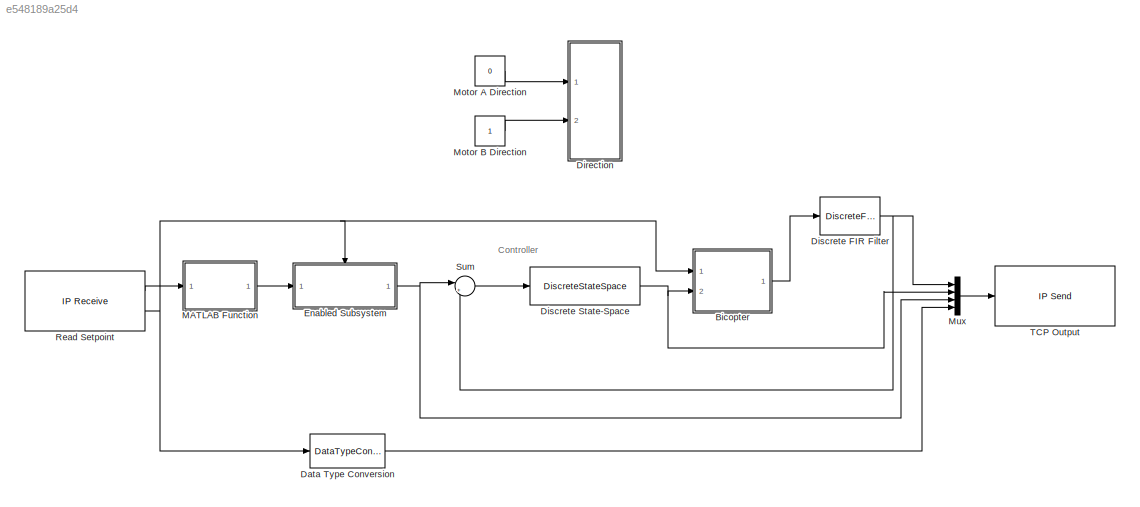
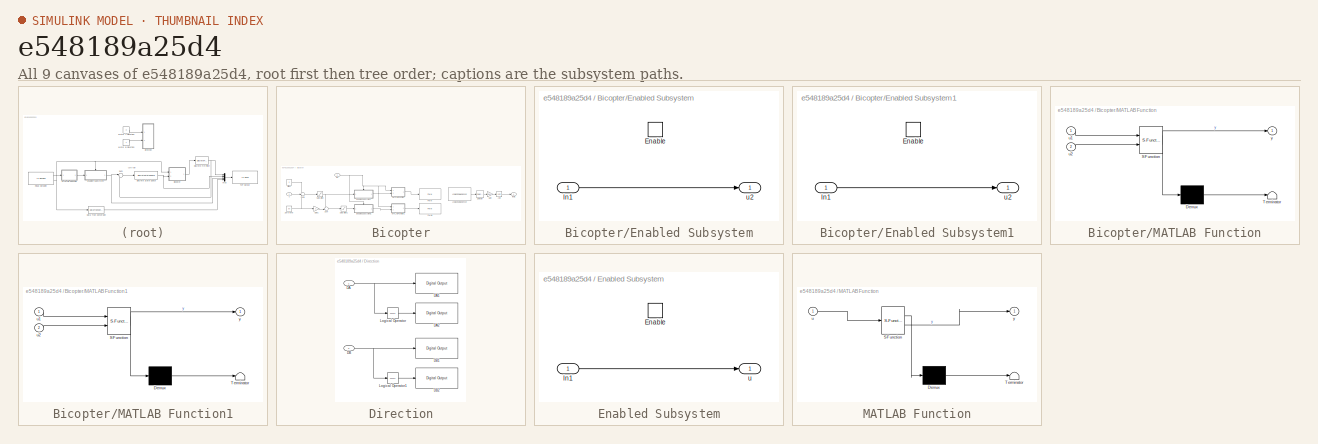
[diagram: thumbnail index - all 9 canvases of the model, root first then tree order]
MODEL slx_e548189a25d4
KIND model
CONFIG AbsTol = auto
CONFIG EnableMultiTasking = on
CONFIG FixedStep = auto
CONFIG MaxStep = auto
CONFIG MinStep = auto
CONFIG RelTol = 1e-3
CONFIG SampleTimeConstraint = Unconstrained
CONFIG SolverName = FixedStepAuto
CONFIG StartTime = 0.0
CONFIG StopTime = inf
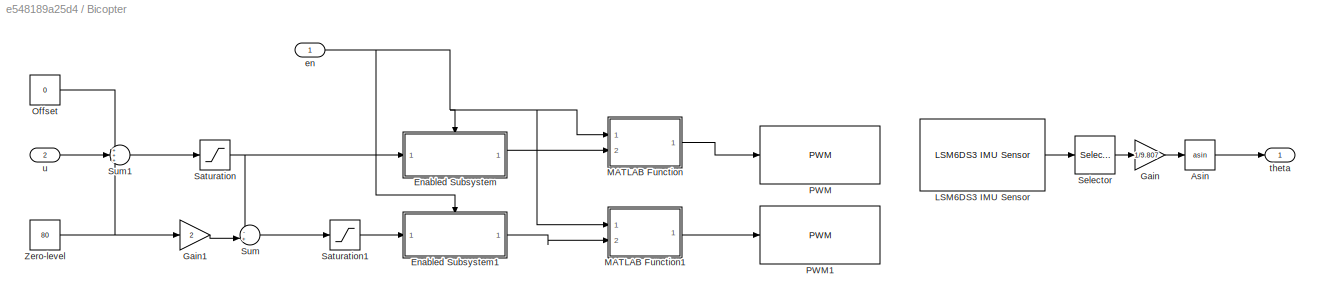
BLOCK [SubSystem] Bicopter
  Ports = [2, 1]
  RequestExecContextInheritance = off
BLOCK [Trigonometry] Bicopter/Asin
  Operator = asin
  Ports = [1, 1]
BLOCK [SubSystem] Bicopter/Enabled Subsystem
  Ports = [1, 1, 1]
  RequestExecContextInheritance = off
  TreatAsAtomicUnit = on
BLOCK [EnablePort] Bicopter/Enabled Subsystem/Enable
  Ports = []
  StatesWhenEnabling = reset
BLOCK [Inport] Bicopter/Enabled Subsystem/In1
BLOCK [Outport] Bicopter/Enabled Subsystem/u2
BLOCK [SubSystem] Bicopter/Enabled Subsystem1
  Ports = [1, 1, 1]
  RequestExecContextInheritance = off
  TreatAsAtomicUnit = on
BLOCK [EnablePort] Bicopter/Enabled Subsystem1/Enable
  Ports = []
  StatesWhenEnabling = reset
BLOCK [Inport] Bicopter/Enabled Subsystem1/In1
BLOCK [Outport] Bicopter/Enabled Subsystem1/u2
BLOCK [Gain] Bicopter/Gain
  Gain = 1/9.807
BLOCK [Gain] Bicopter/Gain1
  Gain = 2
BLOCK [Reference] Bicopter/LSM6DS3 IMU Sensor  REF=arduinosensorlib/LSM6DS3 IMU Sensor
  Ports = [0, 1]
  SourceBlock = arduinosensorlib/LSM6DS3 IMU Sensor
  SourceProductBaseCode = ARDUINO
  SourceType = Arduino LSM6DS3
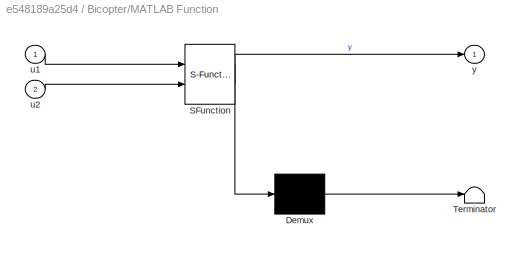
BLOCK [SubSystem] Bicopter/MATLAB Function
  ErrorFcn = Stateflow.Translate.translate
  PermitHierarchicalResolution = ExplicitOnly
  Ports = [2, 1]
  RequestExecContextInheritance = off
  SFBlockType = MATLAB Function
  TreatAsAtomicUnit = on
BLOCK [Demux] Bicopter/MATLAB Function/ Demux 
  Outputs = 1
  Ports = [1, 1]
BLOCK [S-Function] Bicopter/MATLAB Function/ SFunction 
  EnableBusSupport = on
  FunctionName = sf_sfun
  PortCounts = [2 2]
  Ports = [2, 2]
  SFcnIsStateOwnerBlock = off
  SFunctionDeploymentMode = off
  Tag = Stateflow S-Function 1
BLOCK [Terminator] Bicopter/MATLAB Function/ Terminator 
BLOCK [Inport] Bicopter/MATLAB Function/u1
BLOCK [Inport] Bicopter/MATLAB Function/u2
  Port = 2
BLOCK [Outport] Bicopter/MATLAB Function/y
BLOCK [SubSystem] Bicopter/MATLAB Function1
  ErrorFcn = Stateflow.Translate.translate
  PermitHierarchicalResolution = ExplicitOnly
  Ports = [2, 1]
  RequestExecContextInheritance = off
  SFBlockType = MATLAB Function
  TreatAsAtomicUnit = on
BLOCK [Demux] Bicopter/MATLAB Function1/ Demux 
  Outputs = 1
  Ports = [1, 1]
BLOCK [S-Function] Bicopter/MATLAB Function1/ SFunction 
  EnableBusSupport = on
  FunctionName = sf_sfun
  PortCounts = [2 2]
  Ports = [2, 2]
  SFcnIsStateOwnerBlock = off
  SFunctionDeploymentMode = off
  Tag = Stateflow S-Function 3
BLOCK [Terminator] Bicopter/MATLAB Function1/ Terminator 
BLOCK [Inport] Bicopter/MATLAB Function1/u1
BLOCK [Inport] Bicopter/MATLAB Function1/u2
  Port = 2
BLOCK [Outport] Bicopter/MATLAB Function1/y
BLOCK [Constant] Bicopter/Offset
  Value = 0
BLOCK [Reference] Bicopter/PWM  REF=arduinolib/PWM
  Ports = [1]
  SourceBlock = arduinolib/PWM
  SourceProductBaseCode = ARDUINO
  SourceType = Arduino PWM
BLOCK [Reference] Bicopter/PWM1  REF=arduinolib/PWM
  Ports = [1]
  SourceBlock = arduinolib/PWM
  SourceProductBaseCode = ARDUINO
  SourceType = Arduino PWM
BLOCK [Saturate] Bicopter/Saturation
  LowerLimit = 0
  OutDataTypeStr = uint8
  UpperLimit = 255
BLOCK [Saturate] Bicopter/Saturation1
  LowerLimit = 0
  OutDataTypeStr = uint8
  UpperLimit = 255
BLOCK [Selector] Bicopter/Selector
  IndexOptions = Index vector (dialog)
  Indices = [1]
  InputPortWidth = 3
  OutputSizes = 1
  Ports = [1, 1]
BLOCK [Sum] Bicopter/Sum
  Inputs = -+|
  OutDataTypeStr = uint8
  Ports = [2, 1]
BLOCK [Sum] Bicopter/Sum1
  Inputs = +++
  Ports = [3, 1]
BLOCK [Constant] Bicopter/Zero-level
  Value = 80
BLOCK [Inport] Bicopter/en
BLOCK [Outport] Bicopter/theta
BLOCK [Inport] Bicopter/u
  Port = 2
BLOCK [DataTypeConversion] Data Type Conversion
  OutDataTypeStr = double
  RndMeth = Floor
  SaturateOnIntegerOverflow = off
BLOCK [SubSystem] Direction
  Ports = [2]
  RequestExecContextInheritance = off
BLOCK [Inport] Direction/DA
BLOCK [Reference] Direction/DA1  REF=arduinolib/Digital Output
  Ports = [1]
  SourceBlock = arduinolib/Digital Output
  SourceProductBaseCode = ARDUINO
  SourceType = Arduino Digital Output
BLOCK [Reference] Direction/DA2  REF=arduinolib/Digital Output
  Ports = [1]
  SourceBlock = arduinolib/Digital Output
  SourceProductBaseCode = ARDUINO
  SourceType = Arduino Digital Output
BLOCK [Inport] Direction/DB
  Port = 2
BLOCK [Reference] Direction/DB1  REF=arduinolib/Digital Output
  Ports = [1]
  SourceBlock = arduinolib/Digital Output
  SourceProductBaseCode = ARDUINO
  SourceType = Arduino Digital Output
BLOCK [Reference] Direction/DB2  REF=arduinolib/Digital Output
  Ports = [1]
  SourceBlock = arduinolib/Digital Output
  SourceProductBaseCode = ARDUINO
  SourceType = Arduino Digital Output
BLOCK [Logic] Direction/Logical Operator
  AllPortsSameDT = off
  IconShape = distinctive
  Operator = NOT
  OutDataTypeStr = boolean
  Ports = [1, 1]
BLOCK [Logic] Direction/Logical Operator1
  AllPortsSameDT = off
  IconShape = distinctive
  Operator = NOT
  OutDataTypeStr = boolean
  Ports = [1, 1]
BLOCK [DiscreteFir] Discrete FIR Filter
  Coefficients = 0.1*ones(1,10)
  InputPortMap = u0
  OutputPortMap = o0
  Ports = [1, 1]
BLOCK [DiscreteStateSpace] Discrete State-Space
  A = Ci.A
  B = Ci.B
  C = Ci.C
  D = Ci.D
  InitialCondition = xinit
  SampleTime = -1
BLOCK [SubSystem] Enabled Subsystem
  Ports = [1, 1, 1]
  RequestExecContextInheritance = off
  TreatAsAtomicUnit = on
BLOCK [EnablePort] Enabled Subsystem/Enable
  Ports = []
BLOCK [Inport] Enabled Subsystem/In1
BLOCK [Outport] Enabled Subsystem/u
BLOCK [SubSystem] MATLAB Function
  ErrorFcn = Stateflow.Translate.translate
  PermitHierarchicalResolution = ExplicitOnly
  Ports = [1, 1]
  RequestExecContextInheritance = off
  SFBlockType = MATLAB Function
  TreatAsAtomicUnit = on
BLOCK [Demux] MATLAB Function/ Demux 
  Outputs = 1
  Ports = [1, 1]
BLOCK [S-Function] MATLAB Function/ SFunction 
  EnableBusSupport = on
  FunctionName = sf_sfun
  PortCounts = [1 2]
  Ports = [1, 2]
  SFcnIsStateOwnerBlock = off
  SFunctionDeploymentMode = off
  Tag = Stateflow S-Function 2
BLOCK [Terminator] MATLAB Function/ Terminator 
BLOCK [Inport] MATLAB Function/u
BLOCK [Outport] MATLAB Function/y
BLOCK [Constant] Motor A Direction
  OutDataTypeStr = boolean
  Value = 0
BLOCK [Constant] Motor B Direction
  OutDataTypeStr = boolean
BLOCK [Mux] Mux
  DisplayOption = bar
  Ports = [4, 1]
BLOCK [Reference] Read Setpoint  REF=arduinowifilib/WiFi TCP//IP Receive
  Ports = [0, 2]
  SourceBlock = arduinowifilib/WiFi TCP//IP Receive
  SourceProductBaseCode = ARDUINO
  SourceType = Arduino WiFi TCP Receive
BLOCK [Sum] Sum
  Inputs = |+-
  Ports = [2, 1]
BLOCK [Reference] TCP Output  REF=arduinowifilib/WiFi TCP//IP Send
  Ports = [1]
  SourceBlock = arduinowifilib/WiFi TCP//IP Send
  SourceProductBaseCode = ARDUINO
  SourceType = Arduino WiFi TCP Send
ANNOTATION (root): Controller
LINE Bicopter/Asin:1 -> Bicopter/theta:1
LINE Bicopter/Enabled Subsystem/In1:1 -> Bicopter/Enabled Subsystem/u2:1
LINE Bicopter/Enabled Subsystem1/In1:1 -> Bicopter/Enabled Subsystem1/u2:1
LINE Bicopter/Enabled Subsystem1:1 -> Bicopter/MATLAB Function1:2
LINE Bicopter/Enabled Subsystem:1 -> Bicopter/MATLAB Function:2
LINE Bicopter/Gain1:1 -> Bicopter/Sum:2
LINE Bicopter/Gain:1 -> Bicopter/Asin:1
LINE Bicopter/LSM6DS3 IMU Sensor:1 -> Bicopter/Selector:1
LINE Bicopter/MATLAB Function1:1 -> Bicopter/PWM1:1
LINE Bicopter/MATLAB Function:1 -> Bicopter/PWM:1
LINE Bicopter/Offset:1 -> Bicopter/Sum1:1
LINE Bicopter/Saturation1:1 -> Bicopter/Enabled Subsystem1:1
NET Bicopter/Saturation:1 -> Bicopter/Enabled Subsystem:1, Bicopter/Sum:1
LINE Bicopter/Selector:1 -> Bicopter/Gain:1
LINE Bicopter/Sum1:1 -> Bicopter/Saturation:1
LINE Bicopter/Sum:1 -> Bicopter/Saturation1:1
NET Bicopter/Zero-level:1 -> Bicopter/Gain1:1, Bicopter/Sum1:3
NET Bicopter/en:1 -> Bicopter/Enabled Subsystem1:enable, Bicopter/Enabled Subsystem:enable, Bicopter/MATLAB Function1:1, Bicopter/MATLAB Function:1
LINE Bicopter/u:1 -> Bicopter/Sum1:2
LINE Bicopter:1 -> Discrete FIR Filter:1
LINE Data Type Conversion:1 -> Mux:4
NET Direction/DA:1 -> Direction/DA1:1, Direction/Logical Operator:1
NET Direction/DB:1 -> Direction/DB1:1, Direction/Logical Operator1:1
LINE Direction/Logical Operator1:1 -> Direction/DB2:1
LINE Direction/Logical Operator:1 -> Direction/DA2:1
NET Discrete FIR Filter:1 -> Mux:1, Sum:2
NET Discrete State-Space:1 -> Bicopter:2, Mux:2
LINE Enabled Subsystem/In1:1 -> Enabled Subsystem/u:1
NET Enabled Subsystem:1 -> Mux:3, Sum:1
LINE MATLAB Function:1 -> Enabled Subsystem:1
LINE Motor A Direction:1 -> Direction:1
LINE Motor B Direction:1 -> Direction:2
LINE Mux:1 -> TCP Output:1
LINE Read Setpoint:1 -> MATLAB Function:1
NET Read Setpoint:2 -> Bicopter:1, Data Type Conversion:1, Enabled Subsystem:enable
LINE Sum:1 -> Discrete State-Space:1
note: NET lines group one-source signal fan-out (src -> all destinations, sorted); 1:1 wires keep LINE
CHART MATLAB Function states=1 transitions=1
  STATE_LABEL 'eML_blk_kernel()'
  STATE_LABEL "SCRIPT:\nfunction y = fcn(u)\ny = double(typecast(u,'single'));\nend\n"
CHART Bicopter/MATLAB Function1 states=1 transitions=1
  STATE_LABEL 'eML_blk_kernel()'
  STATE_LABEL 'SCRIPT:\nfunction y  = fcn(u1,u2)\ny=uint8(0);\nif u1 == 1\n    y=uint8(u2);\nend\n\n'
CHART Bicopter/MATLAB Function states=1 transitions=1
  STATE_LABEL 'eML_blk_kernel()'
  STATE_LABEL 'SCRIPT:\nfunction y  = fcn(u1,u2)\ny=uint8(0);\nif u1 == 1\n    y=uint8(u2);\nend\n\n'
CHART  states=0 transitions=0
CHART  states=0 transitions=0
CHART  states=0 transitions=0
